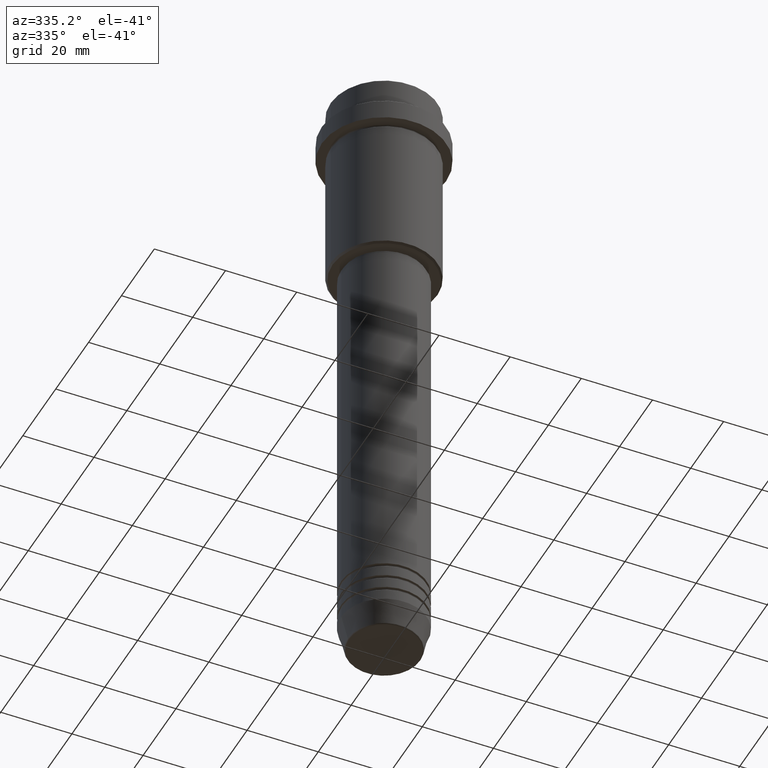
[diagram: clean part render]
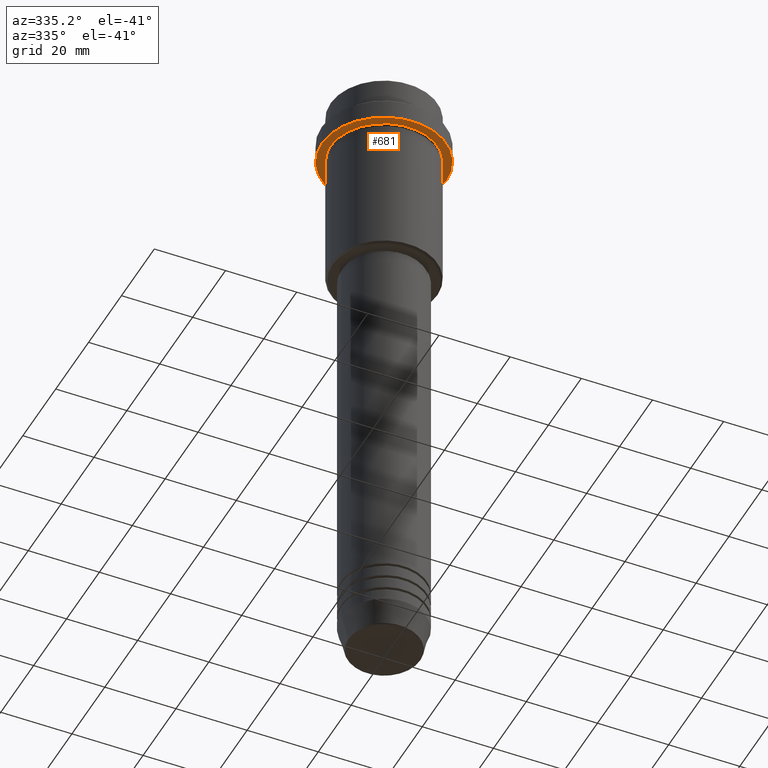
[diagram: same view with one face highlighted and labeled with its STEP entity id]
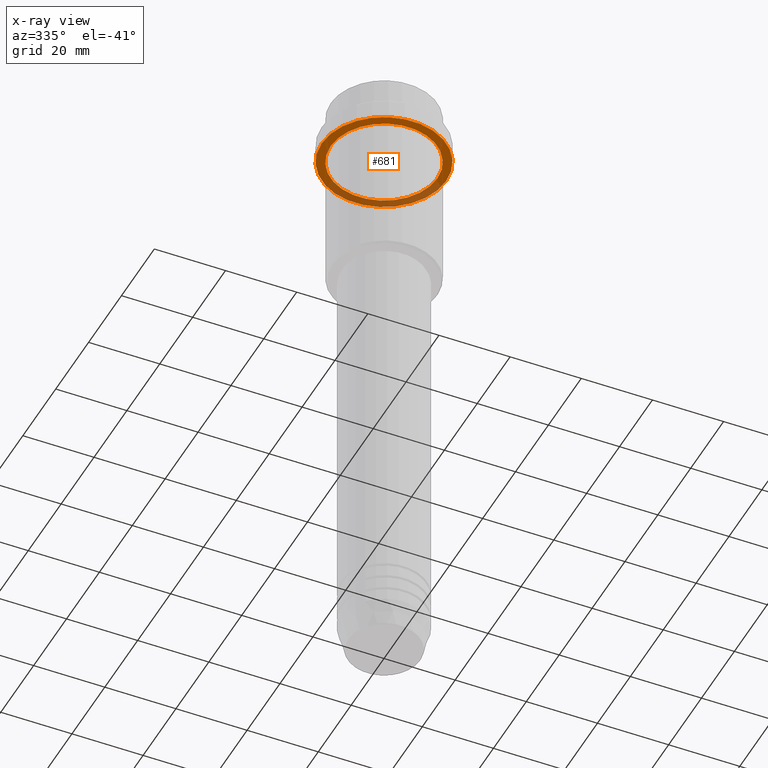
[diagram: x-ray of the same camera — body ghosted, the highlighted face saturated]
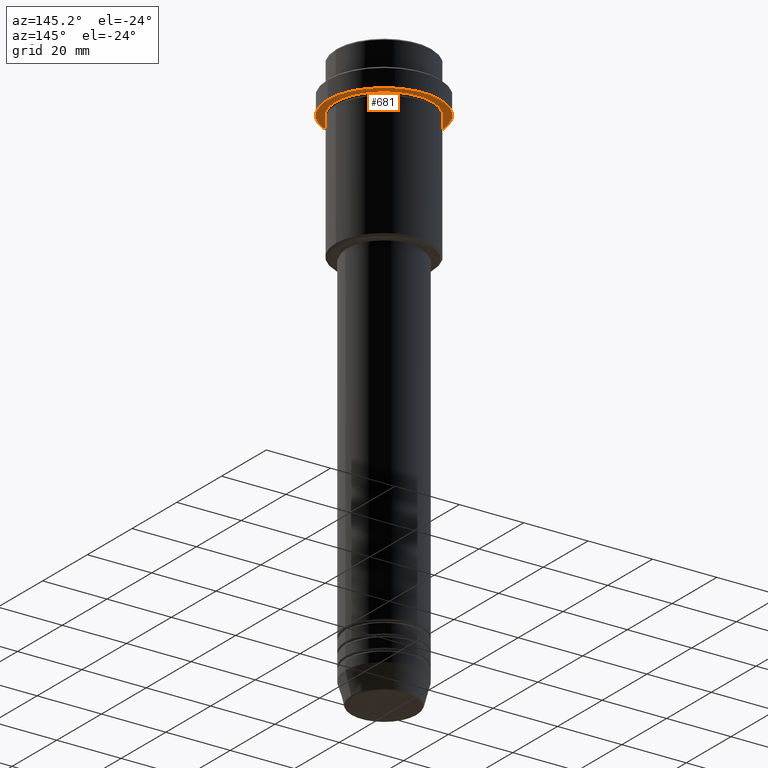
[diagram: same view with one face highlighted and labeled with its STEP entity id]
A machine part, auxiliary view. The second image highlights one B-rep face of the part: STEP entity #681.
The next image is the same camera in x-ray: the body ghosted, the highlighted face saturated — about 33% of this face is hidden behind the body in this view.
A second angle (auxiliary view) of the same face is appended — the face is thin or edge-on in the first view.
In plain terms, the highlighted planar face has unit normal (0, 0, -1).
Its self-contained STEP definition (entity closure, byte-faithful):
#53 = AXIS2_PLACEMENT_3D ( 'NONE', #942, #718, #628 ) ;
#68 = VERTEX_POINT ( 'NONE', #218 ) ;
#78 = FACE_OUTER_BOUND ( 'NONE', #355, .T. ) ;
#204 = CIRCLE ( 'NONE', #482, 17.50000000000000000 ) ;
#214 = ORIENTED_EDGE ( 'NONE', *, *, #1174, .F. ) ;
#218 = CARTESIAN_POINT ( 'NONE',  ( -17.50000000000000000, 2.143131898507868248E-15, -15.00000000000000000 ) ) ;
#257 = EDGE_CURVE ( 'NONE', #1388, #649, #1192, .T. ) ;
#264 = DIRECTION ( 'NONE',  ( -0.000000000000000000, -0.000000000000000000, 1.000000000000000000 ) ) ;
#313 = CARTESIAN_POINT ( 'NONE',  ( 0.000000000000000000, 17.50000000000000000, -15.00000000000000000 ) ) ;
#355 = EDGE_LOOP ( 'NONE', ( #1383, #214 ) ) ;
#364 = CARTESIAN_POINT ( 'NONE',  ( 17.50000000000000000, 0.000000000000000000, -15.00000000000000000 ) ) ;
#368 = CARTESIAN_POINT ( 'NONE',  ( 0.000000000000000000, 0.000000000000000000, -15.00000000000000000 ) ) ;
#398 = DIRECTION ( 'NONE',  ( -1.000000000000000000, 0.000000000000000000, -0.000000000000000000 ) ) ;
#403 = DIRECTION ( 'NONE',  ( 0.000000000000000000, 0.000000000000000000, -1.000000000000000000 ) ) ;
#482 = AXIS2_PLACEMENT_3D ( 'NONE', #704, #1221, #1029 ) ;
#628 = DIRECTION ( 'NONE',  ( -1.000000000000000000, 0.000000000000000000, 0.000000000000000000 ) ) ;
#649 = VERTEX_POINT ( 'NONE', #1278 ) ;
#681 = ADVANCED_FACE ( 'NONE', ( #923, #78 ), #1364, .T. ) ;
#683 = DIRECTION ( 'NONE',  ( -0.000000000000000000, -0.000000000000000000, 1.000000000000000000 ) ) ;
#704 = CARTESIAN_POINT ( 'NONE',  ( 0.000000000000000000, 0.000000000000000000, -15.00000000000000000 ) ) ;
#711 = ORIENTED_EDGE ( 'NONE', *, *, #806, .T. ) ;
#718 = DIRECTION ( 'NONE',  ( -0.000000000000000000, -0.000000000000000000, 1.000000000000000000 ) ) ;
#729 = AXIS2_PLACEMENT_3D ( 'NONE', #313, #403, #398 ) ;
#741 = ORIENTED_EDGE ( 'NONE', *, *, #257, .T. ) ;
#773 = DIRECTION ( 'NONE',  ( -1.000000000000000000, 0.000000000000000000, 0.000000000000000000 ) ) ;
#799 = DIRECTION ( 'NONE',  ( 1.000000000000000000, 0.000000000000000000, 0.000000000000000000 ) ) ;
#806 = EDGE_CURVE ( 'NONE', #649, #1388, #955, .T. ) ;
#923 = FACE_BOUND ( 'NONE', #1331, .T. ) ;
#927 = CIRCLE ( 'NONE', #1180, 17.50000000000000000 ) ;
#942 = CARTESIAN_POINT ( 'NONE',  ( 0.000000000000000000, 0.000000000000000000, -15.00000000000000000 ) ) ;
#955 = CIRCLE ( 'NONE', #1376, 14.99999999999999467 ) ;
#1026 = CARTESIAN_POINT ( 'NONE',  ( -14.99999999999999467, 0.000000000000000000, -15.00000000000000000 ) ) ;
#1029 = DIRECTION ( 'NONE',  ( 1.000000000000000000, 0.000000000000000000, 0.000000000000000000 ) ) ;
#1040 = VERTEX_POINT ( 'NONE', #364 ) ;
#1174 = EDGE_CURVE ( 'NONE', #68, #1040, #927, .T. ) ;
#1180 = AXIS2_PLACEMENT_3D ( 'NONE', #368, #264, #799 ) ;
#1186 = CARTESIAN_POINT ( 'NONE',  ( 0.000000000000000000, 0.000000000000000000, -15.00000000000000000 ) ) ;
#1192 = CIRCLE ( 'NONE', #53, 14.99999999999999467 ) ;
#1220 = EDGE_CURVE ( 'NONE', #1040, #68, #204, .T. ) ;
#1221 = DIRECTION ( 'NONE',  ( -0.000000000000000000, -0.000000000000000000, 1.000000000000000000 ) ) ;
#1278 = CARTESIAN_POINT ( 'NONE',  ( 14.99999999999999467, 1.836970198721029194E-15, -15.00000000000000000 ) ) ;
#1331 = EDGE_LOOP ( 'NONE', ( #741, #711 ) ) ;
#1364 = PLANE ( 'NONE',  #729 ) ;
#1376 = AXIS2_PLACEMENT_3D ( 'NONE', #1186, #683, #773 ) ;
#1383 = ORIENTED_EDGE ( 'NONE', *, *, #1220, .F. ) ;
#1388 = VERTEX_POINT ( 'NONE', #1026 ) ;